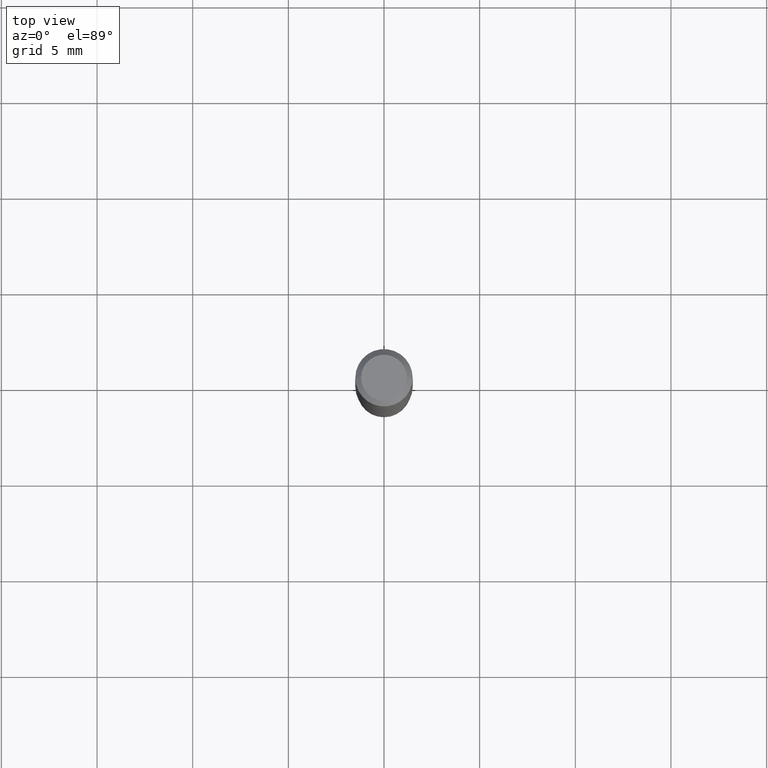
[diagram: clean part render]
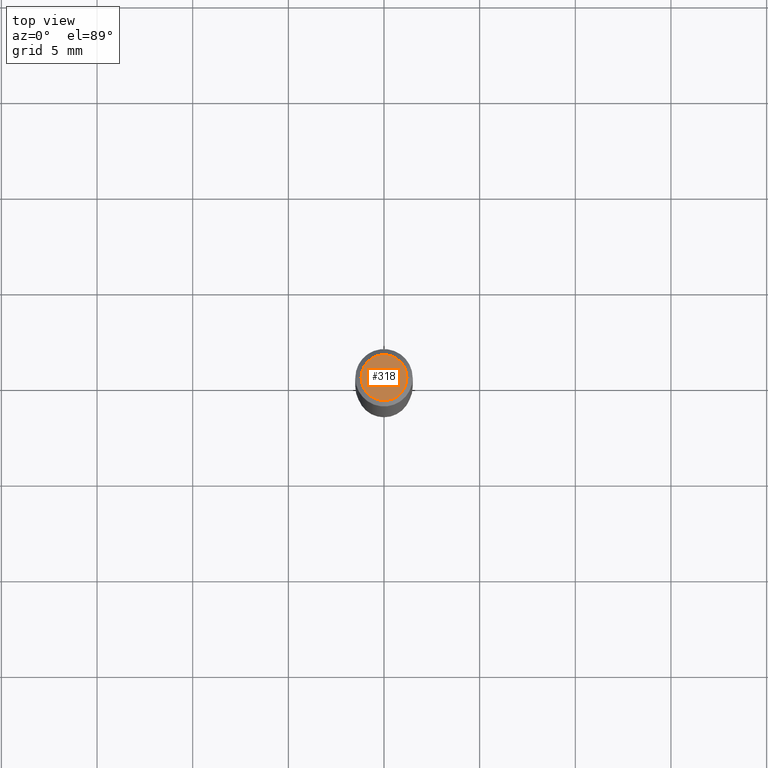
[diagram: same view with one face highlighted and labeled with its STEP entity id]
A machine part, top view. The second image highlights one B-rep face of the part: STEP entity #318.
In plain terms, the highlighted planar face has unit normal (0, -0, -1).
Its self-contained STEP definition (entity closure, byte-faithful):
#9 = CARTESIAN_POINT ( 'NONE',  ( -0.04724000000000000421, 3.504923541997677355E-16, -3.380025165670481712E-19 ) ) ;
#62 = VERTEX_POINT ( 'NONE', #9 ) ;
#103 = CARTESIAN_POINT ( 'NONE',  ( 4.132873053354867254E-48, -5.900647395337818946E-34, -1.690012582823346072E-19 ) ) ;
#109 = CIRCLE ( 'NONE', #241, 0.04724000000000000421 ) ;
#149 = AXIS2_PLACEMENT_3D ( 'NONE', #103, #370, #447 ) ;
#177 = EDGE_LOOP ( 'NONE', ( #221, #411 ) ) ;
#220 = DIRECTION ( 'NONE',  ( -2.445468806185136597E-29, 3.491481338843145583E-15, 1.000000000000000000 ) ) ;
#221 = ORIENTED_EDGE ( 'NONE', *, *, #270, .T. ) ;
#241 = AXIS2_PLACEMENT_3D ( 'NONE', #413, #482, #330 ) ;
#244 = EDGE_CURVE ( 'NONE', #369, #62, #109, .T. ) ;
#270 = EDGE_CURVE ( 'NONE', #62, #369, #462, .T. ) ;
#293 = FACE_OUTER_BOUND ( 'NONE', #177, .T. ) ;
#318 = ADVANCED_FACE ( 'NONE', ( #293 ), #406, .F. ) ;
#325 = DIRECTION ( 'NONE',  ( 1.000000000000000000, -6.982962677686266711E-15, 4.876185090822587894E-29 ) ) ;
#330 = DIRECTION ( 'NONE',  ( 1.000000000000000000, -6.982962677686266711E-15, 4.876185090822587894E-29 ) ) ;
#340 = AXIS2_PLACEMENT_3D ( 'NONE', #372, #220, #325 ) ;
#369 = VERTEX_POINT ( 'NONE', #475 ) ;
#370 = DIRECTION ( 'NONE',  ( 2.438088387897960049E-29, -3.491481338843145188E-15, -1.000000000000000000 ) ) ;
#372 = CARTESIAN_POINT ( 'NONE',  ( 8.265746106709734507E-48, -1.180129479067563789E-33, -3.380025165646692144E-19 ) ) ;
#406 = PLANE ( 'NONE',  #149 ) ;
#411 = ORIENTED_EDGE ( 'NONE', *, *, #244, .T. ) ;
#413 = CARTESIAN_POINT ( 'NONE',  ( 8.265746106709734507E-48, -1.180129479067563789E-33, -3.380025165646692144E-19 ) ) ;
#447 = DIRECTION ( 'NONE',  ( -1.000000000000000000, 6.982962677686265922E-15, -4.876176775795935793E-29 ) ) ;
#462 = CIRCLE ( 'NONE', #340, 0.04724000000000000421 ) ;
#475 = CARTESIAN_POINT ( 'NONE',  ( 0.04724000000000000421, -3.852183633974369345E-16, -3.380025165621689721E-19 ) ) ;
#482 = DIRECTION ( 'NONE',  ( -2.445468806185136597E-29, 3.491481338843145583E-15, 1.000000000000000000 ) ) ;